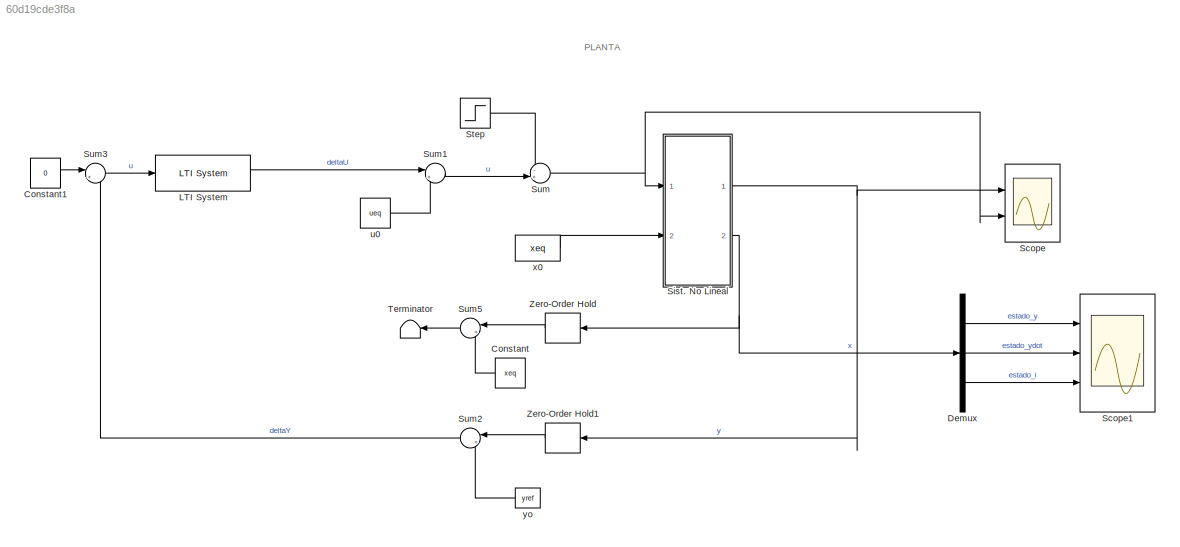
MODEL slx_60d19cde3f8a
KIND model
CONFIG AbsTol = auto
CONFIG EnableMultiTasking = off
CONFIG FixedStep = 0.001
CONFIG MaxStep = auto
CONFIG MinStep = auto
CONFIG RelTol = 1e-3
CONFIG SampleTimeConstraint = Unconstrained
CONFIG Solver = ode45
CONFIG SolverName = ode45
CONFIG StartTime = 0.0
CONFIG StopTime = 6
BLOCK [Constant] Constant
  Value = xeq
BLOCK [Constant] Constant1
  SampleTime = -1
  Value = 0
BLOCK [Demux] Demux
  DisplayOption = bar
  Outputs = 3
  Ports = [1, 3]
BLOCK [Reference] LTI System  REF=cstblocks/LTI System
  Ports = [1, 1]
  SourceBlock = cstblocks/LTI System
  SourceProductBaseCode = CT
  SourceProductName = Control System Toolbox
  SourceType = LTI Block
BLOCK [Scope] Scope
  Floating = off
  NumInputPorts = 2
  Ports = [2]
  ScopeSpecificationString = Simulink.scopes.TimeScopeBlockCfg('CurrentConfiguration', extmgr.ConfigurationSet(extmgr.Configuration('Core','General UI',true,'FigureColor',[1 1 1]),extmgr.Configuration('Core','Source UI',true),extmgr.Configuration('Sources','WiredSimulink',true,'DataLogging',true,'DataLoggingVariableName','inout'),extmgr.Configuration('Visuals','Time Domain',true,'SerializedDisplays',{struct('MinYLimReal','-0....<+2372ch>
BLOCK [Scope] Scope1
  Floating = off
  NumInputPorts = 3
  Ports = [3]
  ScopeSpecificationString = Simulink.scopes.TimeScopeBlockCfg('CurrentConfiguration', extmgr.ConfigurationSet(extmgr.Configuration('Core','General UI',true),extmgr.Configuration('Core','Source UI',true),extmgr.Configuration('Sources','WiredSimulink',true,'DataLoggingVariableName','estado','DataLogging',true),extmgr.Configuration('Visuals','Time Domain',true,'SerializedDisplays',{struct('MinYLimReal','-0.00026','MaxYLimReal',...<+2790ch>
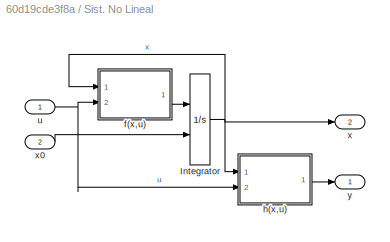
BLOCK [SubSystem] Sist. No Lineal 
  Ports = [2, 2]
  RequestExecContextInheritance = off
BLOCK [Integrator] Sist. No Lineal /Integrator
  InitialConditionSource = external
  Ports = [2, 1]
  ZeroCross = off
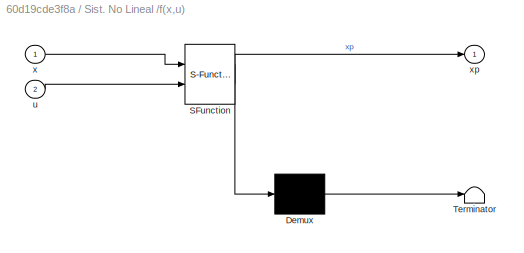
BLOCK [SubSystem] Sist. No Lineal /f(x,u)
  ErrorFcn = Stateflow.Translate.translate
  PermitHierarchicalResolution = ExplicitOnly
  Ports = [2, 1]
  RequestExecContextInheritance = off
  SFBlockType = MATLAB Function
  TreatAsAtomicUnit = on
BLOCK [Demux] Sist. No Lineal /f(x,u)/ Demux 
  Outputs = 1
  Ports = [1, 1]
BLOCK [S-Function] Sist. No Lineal /f(x,u)/ SFunction 
  EnableBusSupport = on
  FunctionName = sf_sfun
  PortCounts = [2 2]
  Ports = [2, 2]
  SFcnIsStateOwnerBlock = off
  SFunctionDeploymentMode = off
  Tag = Stateflow S-Function 1
BLOCK [Terminator] Sist. No Lineal /f(x,u)/ Terminator 
BLOCK [Inport] Sist. No Lineal /f(x,u)/u
  IconDisplay = Port number
  Port = 2
BLOCK [Inport] Sist. No Lineal /f(x,u)/x
  IconDisplay = Port number
BLOCK [Outport] Sist. No Lineal /f(x,u)/xp
  IconDisplay = Port number
  VectorParamsAs1DForOutWhenUnconnected = off
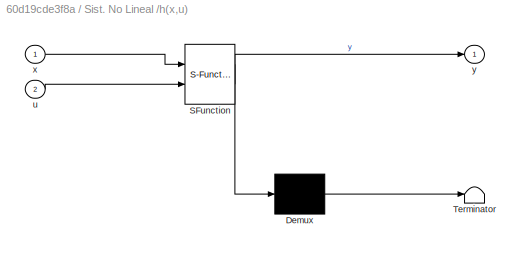
BLOCK [SubSystem] Sist. No Lineal /h(x,u)
  ErrorFcn = Stateflow.Translate.translate
  PermitHierarchicalResolution = ExplicitOnly
  Ports = [2, 1]
  RequestExecContextInheritance = off
  SFBlockType = MATLAB Function
  TreatAsAtomicUnit = on
BLOCK [Demux] Sist. No Lineal /h(x,u)/ Demux 
  Outputs = 1
  Ports = [1, 1]
BLOCK [S-Function] Sist. No Lineal /h(x,u)/ SFunction 
  EnableBusSupport = on
  FunctionName = sf_sfun
  PortCounts = [2 2]
  Ports = [2, 2]
  SFcnIsStateOwnerBlock = off
  SFunctionDeploymentMode = off
  Tag = Stateflow S-Function 2
BLOCK [Terminator] Sist. No Lineal /h(x,u)/ Terminator 
BLOCK [Inport] Sist. No Lineal /h(x,u)/u
  IconDisplay = Port number
  Port = 2
BLOCK [Inport] Sist. No Lineal /h(x,u)/x
  IconDisplay = Port number
BLOCK [Outport] Sist. No Lineal /h(x,u)/y
  IconDisplay = Port number
  VectorParamsAs1DForOutWhenUnconnected = off
BLOCK [Inport] Sist. No Lineal /u
  IconDisplay = Port number
BLOCK [Outport] Sist. No Lineal /x
  IconDisplay = Port number
  Port = 2
  VectorParamsAs1DForOutWhenUnconnected = off
BLOCK [Inport] Sist. No Lineal /x0
  IconDisplay = Port number
  Port = 2
BLOCK [Outport] Sist. No Lineal /y
  IconDisplay = Port number
  VectorParamsAs1DForOutWhenUnconnected = off
BLOCK [Step] Step
  After = 0.1
  SampleTime = 0
  Time = 3
BLOCK [Sum] Sum
  IconShape = round
  InputSameDT = off
  Inputs = -+|
  OutDataTypeStr = Inherit: Inherit via internal rule
  Ports = [2, 1]
  SaturateOnIntegerOverflow = off
BLOCK [Sum] Sum1
  IconShape = round
  InputSameDT = off
  Inputs = |++
  OutDataTypeStr = Inherit: Inherit via internal rule
  Ports = [2, 1]
  SaturateOnIntegerOverflow = off
BLOCK [Sum] Sum2
  IconShape = round
  InputSameDT = off
  Inputs = |+-
  OutDataTypeStr = Inherit: Inherit via internal rule
  Ports = [2, 1]
  SaturateOnIntegerOverflow = off
BLOCK [Sum] Sum3
  IconShape = round
  InputSameDT = off
  Inputs = |+-
  OutDataTypeStr = Inherit: Inherit via internal rule
  Ports = [2, 1]
  SaturateOnIntegerOverflow = off
BLOCK [Sum] Sum5
  IconShape = round
  InputSameDT = off
  Inputs = |+-
  OutDataTypeStr = Inherit: Inherit via internal rule
  Ports = [2, 1]
  SaturateOnIntegerOverflow = off
BLOCK [Terminator] Terminator
BLOCK [ZeroOrderHold] Zero-Order Hold
  SampleTime = Ts
BLOCK [ZeroOrderHold] Zero-Order Hold1
  SampleTime = Ts
BLOCK [Constant] u0
  Value = ueq
BLOCK [Constant] x0
  Value = xeq
BLOCK [Constant] yo
  Value = yref
ANNOTATION (root): PLANTA
LINE Constant1:1 -> Sum3:1
LINE Constant:1 -> Sum5:2
LINE Demux:1 -> Scope1:1
LINE Demux:2 -> Scope1:2
LINE Demux:3 -> Scope1:3
LINE LTI System:1 -> Sum1:1
NET Sist. No Lineal /Integrator:1 -> Sist. No Lineal /f(x,u):1, Sist. No Lineal /h(x,u):1, Sist. No Lineal /x:1
LINE Sist. No Lineal /f(x,u):1 -> Sist. No Lineal /Integrator:1
LINE Sist. No Lineal /h(x,u):1 -> Sist. No Lineal /y:1
NET Sist. No Lineal /u:1 -> Sist. No Lineal /f(x,u):2, Sist. No Lineal /h(x,u):2
LINE Sist. No Lineal /x0:1 -> Sist. No Lineal /Integrator:2
NET Sist. No Lineal :1 -> Scope:1, Zero-Order Hold1:1
NET Sist. No Lineal :2 -> Demux:1, Zero-Order Hold:1
LINE Step:1 -> Sum:1
LINE Sum1:1 -> Sum:2
LINE Sum2:1 -> Sum3:2
LINE Sum3:1 -> LTI System:1
LINE Sum5:1 -> Terminator:1
NET Sum:1 -> Scope:2, Sist. No Lineal :1
LINE Zero-Order Hold1:1 -> Sum2:1
LINE Zero-Order Hold:1 -> Sum5:1
LINE u0:1 -> Sum1:2
LINE x0:1 -> Sist. No Lineal :2
LINE yo:1 -> Sum2:2
note: NET lines group one-source signal fan-out (src -> all destinations, sorted); 1:1 wires keep LINE
CHART Sist.
No Lineal
/f(x,u) states=1 transitions=1
  STATE_LABEL 'eML_blk_kernel()'
  STATE_LABEL 'SCRIPT:\nfunction xp = f(x,u)\n\nxp1 = x(2);\nxp2 = (5*(x(3) + 2)^2)/(2*(x(1) - 1)^2) ...\n    - (5*(x(3) - 2)^2)/(2*(x(1) + 1)^2) - 10; \nxp3 = - 4*x(3)^2 + u;\n\nxp = [xp1; xp2; xp3];\n\n\n'
CHART Sist.
No Lineal
/h(x,u) states=1 transitions=1
  STATE_LABEL 'eML_blk_kernel()'
  STATE_LABEL 'SCRIPT:\nfunction y = h(x,u)\n\ny=x(1);\n\n\n\n\n\n\n'
